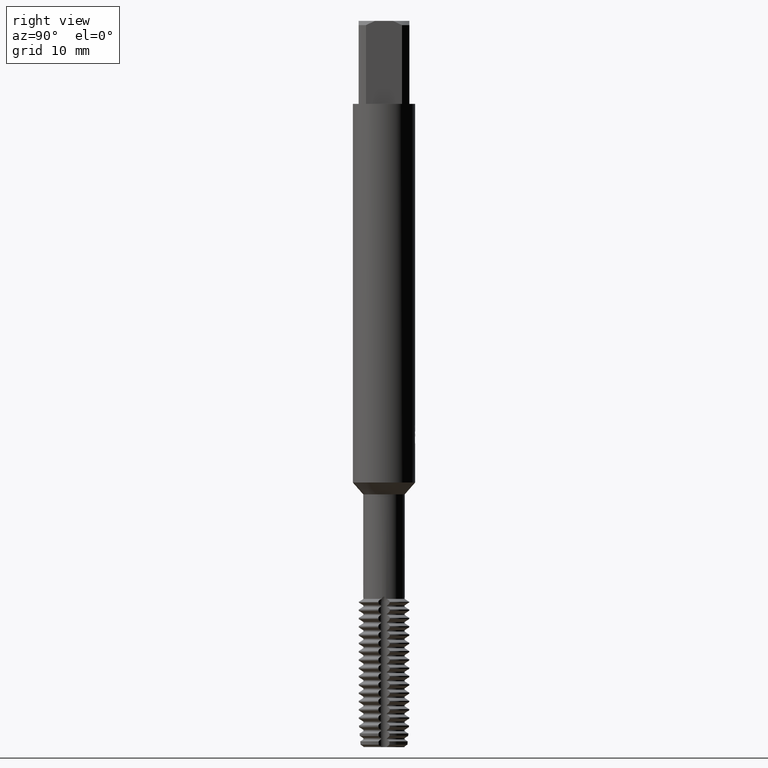
[diagram: clean part render]
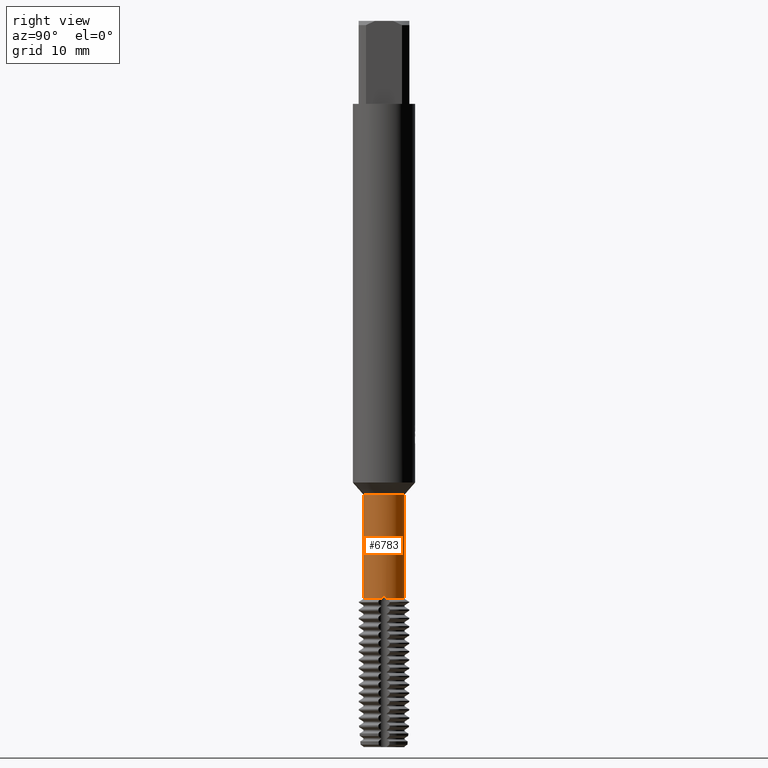
[diagram: same view with one face highlighted and labeled with its STEP entity id]
A machine part, right view. The second image highlights one B-rep face of the part: STEP entity #6783.
In plain terms, the highlighted cylindrical surface (edge-blend (fillet) strip) has radius 2 mm, axis along (-0, -0, 1).
Its self-contained STEP definition (entity closure, byte-faithful):
#2967=EDGE_CURVE('',#6327,#5201,#8851,.T.);
#3571=EDGE_CURVE('',#5201,#4161,#9507,.T.);
#3719=EDGE_CURVE('',#4937,#4901,#9674,.T.);
#3851=EDGE_CURVE('',#6533,#5689,#9818,.T.);
#4161=VERTEX_POINT('',#10156);
#4405=EDGE_CURVE('',#6533,#4161,#10426,.T.);
#4901=VERTEX_POINT('',#10971);
#4937=VERTEX_POINT('',#11008);
#5201=VERTEX_POINT('',#11287);
#5613=EDGE_CURVE('',#6327,#4901,#11738,.T.);
#5689=VERTEX_POINT('',#11818);
#6327=VERTEX_POINT('',#12515);
#6533=VERTEX_POINT('',#12744);
#6783=ADVANCED_FACE('',(#13012),#13013,.T.);
#6823=EDGE_CURVE('',#6991,#7283,#13057,.T.);
#6991=VERTEX_POINT('',#13236);
#7283=VERTEX_POINT('',#13551);
#7989=EDGE_CURVE('',#6991,#5689,#14305,.T.);
#8663=EDGE_CURVE('',#4937,#7283,#15031,.T.);
#8851=B_SPLINE_CURVE_WITH_KNOTS('',3,(#15224,#15225,#15226,#15227,#15228,#15229,#15230,#15231,#15232,#15233,#15234,#15235,#15236,#15237,#15238,#15239,#15240,#15241),.UNSPECIFIED.,.F.,.F.,(4,2,2,2,2,2,2,2,4),(0.0,0.184916828543071,0.313881170598999,0.392657508019681,0.455740030960599,0.527677729166311,0.648953381606083,0.801127423903104,0.947968422808011),.UNSPECIFIED.);
#9507=B_SPLINE_CURVE_WITH_KNOTS('',3,(#16461,#16462,#16463,#16464,#16465,#16466,#16467,#16468,#16469,#16470,#16471,#16472,#16473,#16474,#16475,#16476,#16477,#16478),.UNSPECIFIED.,.F.,.F.,(4,2,2,2,2,2,2,2,4),(0.0,0.184916828543071,0.313881170598999,0.392657508019681,0.455740030960599,0.527677729166311,0.648953381606083,0.801127423903104,0.947968422808011),.UNSPECIFIED.);
#9674=B_SPLINE_CURVE_WITH_KNOTS('',3,(#16757,#16758,#16759,#16760,#16761,#16762,#16763,#16764,#16765,#16766,#16767,#16768,#16769,#16770,#16771,#16772,#16773,#16774),.UNSPECIFIED.,.F.,.F.,(4,2,2,2,2,2,2,2,4),(0.0,0.184916828542244,0.313881170602458,0.39265750802902,0.455740030974451,0.527677729185293,0.64895338163406,0.801127423942244,0.94796842285793),.UNSPECIFIED.);
#9818=B_SPLINE_CURVE_WITH_KNOTS('',3,(#17016,#17017,#17018,#17019,#17020,#17021,#17022,#17023,#17024,#17025,#17026,#17027,#17028,#17029,#17030,#17031,#17032,#17033),.UNSPECIFIED.,.F.,.F.,(4,2,2,2,2,2,2,2,4),(0.0,0.184916828543801,0.313881170598388,0.392657508017033,0.45574003095613,0.527677729159719,0.648953381596259,0.801127423889196,0.947968422790102),.UNSPECIFIED.);
#10156=CARTESIAN_POINT('',(1.98818840626598,0.217041150912674,-55.7113248654052));
#10426=CIRCLE('',#18218,2.0);
#10971=CARTESIAN_POINT('',(0.217041150912737,-1.98818840626599,-55.7113248654052));
#11008=CARTESIAN_POINT('',(-4.75323867020173E-013,-2.0,-55.4913272165206));
#11287=CARTESIAN_POINT('',(2.0,-4.75495151171132E-013,-55.4913272165206));
#11738=CIRCLE('',#20654,2.0);
#11818=CARTESIAN_POINT('',(4.75306954330964E-013,2.0,-55.4913272165206));
#12515=CARTESIAN_POINT('',(1.98818840626599,-0.217041150912705,-55.7113248654052));
#12744=CARTESIAN_POINT('',(0.217041150912698,1.98818840626599,-55.7113248654052));
#13012=FACE_OUTER_BOUND('',#23056,.T.);
#13013=CYLINDRICAL_SURFACE('',#23057,2.0);
#13057=CIRCLE('',#23131,2.0);
#13236=CARTESIAN_POINT('',(0.0,2.0,-45.63971143));
#13551=CARTESIAN_POINT('',(2.44921270764475E-016,-2.0,-45.63971143));
#14305=LINE('',#25473,#25474);
#15031=LINE('',#26864,#26865);
#15224=CARTESIAN_POINT('',(1.98818840626599,-0.217041150912704,-55.7113248654052));
#15225=CARTESIAN_POINT('',(1.99040136188015,-0.196769544919332,-55.6531567977625));
#15226=CARTESIAN_POINT('',(1.9929508516576,-0.170546836302032,-55.6045018817615));
#15227=CARTESIAN_POINT('',(1.99659177912029,-0.118651361228063,-55.5421955936678));
#15228=CARTESIAN_POINT('',(1.99785792265676,-0.0956162957738745,-55.5228740456769));
#15229=CARTESIAN_POINT('',(1.99924476439916,-0.0568886544430334,-55.5021928749242));
#15230=CARTESIAN_POINT('',(1.99964121236422,-0.0412732748931032,-55.4964792105463));
#15231=CARTESIAN_POINT('',(2.0000084034947,-0.011770152683538,-55.4912009991279));
#15232=CARTESIAN_POINT('',(2.00004337429773,0.00147802351660006,-55.4907050412865));
#15233=CARTESIAN_POINT('',(1.9998343994518,0.0298469969715637,-55.4936994585098));
#15234=CARTESIAN_POINT('',(1.999554580238,0.0444601085654174,-55.497704079874));
#15235=CARTESIAN_POINT('',(1.99845829977472,0.0819710553093441,-55.5138213421926));
#15236=CARTESIAN_POINT('',(1.99743195346266,0.102958844637766,-55.5292812837702));
#15237=CARTESIAN_POINT('',(1.99493074752295,0.144148024721046,-55.5699767275644));
#15238=CARTESIAN_POINT('',(1.99338525362248,0.163293444133312,-55.5971693201742));
#15239=CARTESIAN_POINT('',(1.99060688305388,0.194207550773391,-55.6526423722295));
#15240=CARTESIAN_POINT('',(1.98931063957454,0.206761020882981,-55.6818266944591));
#15241=CARTESIAN_POINT('',(1.98818840626599,0.217041150912705,-55.7113248654052));
#16461=CARTESIAN_POINT('',(1.98818840626599,-0.217041150912704,-55.7113248654052));
#16462=CARTESIAN_POINT('',(1.99040136188015,-0.196769544919332,-55.6531567977625));
#16463=CARTESIAN_POINT('',(1.9929508516576,-0.170546836302032,-55.6045018817615));
#16464=CARTESIAN_POINT('',(1.99659177912029,-0.118651361228063,-55.5421955936678));
#16465=CARTESIAN_POINT('',(1.99785792265676,-0.0956162957738745,-55.5228740456769));
#16466=CARTESIAN_POINT('',(1.99924476439916,-0.0568886544430334,-55.5021928749242));
#16467=CARTESIAN_POINT('',(1.99964121236422,-0.0412732748931032,-55.4964792105463));
#16468=CARTESIAN_POINT('',(2.0000084034947,-0.011770152683538,-55.4912009991279));
#16469=CARTESIAN_POINT('',(2.00004337429773,0.00147802351660006,-55.4907050412865));
#16470=CARTESIAN_POINT('',(1.9998343994518,0.0298469969715637,-55.4936994585098));
#16471=CARTESIAN_POINT('',(1.999554580238,0.0444601085654174,-55.497704079874));
#16472=CARTESIAN_POINT('',(1.99845829977472,0.0819710553093441,-55.5138213421926));
#16473=CARTESIAN_POINT('',(1.99743195346266,0.102958844637766,-55.5292812837702));
#16474=CARTESIAN_POINT('',(1.99493074752295,0.144148024721046,-55.5699767275644));
#16475=CARTESIAN_POINT('',(1.99338525362248,0.163293444133312,-55.5971693201742));
#16476=CARTESIAN_POINT('',(1.99060688305388,0.194207550773391,-55.6526423722295));
#16477=CARTESIAN_POINT('',(1.98931063957454,0.206761020882981,-55.6818266944591));
#16478=CARTESIAN_POINT('',(1.98818840626599,0.217041150912705,-55.7113248654052));
#16757=CARTESIAN_POINT('',(-0.217041150912712,-1.98818840626599,-55.7113248654052));
#16758=CARTESIAN_POINT('',(-0.196769544919432,-1.99040136188014,-55.6531567977628));
#16759=CARTESIAN_POINT('',(-0.17054683630218,-1.99295085165759,-55.6045018817617));
#16760=CARTESIAN_POINT('',(-0.118651361227165,-1.99659177912035,-55.5421955936667));
#16761=CARTESIAN_POINT('',(-0.0956162957729019,-1.99785792265679,-55.5228740456764));
#16762=CARTESIAN_POINT('',(-0.0568886544430276,-1.99924476439916,-55.5021928749242));
#16763=CARTESIAN_POINT('',(-0.0412732748931019,-1.99964121236422,-55.4964792105463));
#16764=CARTESIAN_POINT('',(-0.0117701526835849,-2.0000084034947,-55.4912009991279));
#16765=CARTESIAN_POINT('',(0.0014780235165756,-2.00004337429773,-55.4907050412865));
#16766=CARTESIAN_POINT('',(0.029846996971584,-1.9998343994518,-55.4936994585097));
#16767=CARTESIAN_POINT('',(0.044460108565461,-1.999554580238,-55.497704079874));
#16768=CARTESIAN_POINT('',(0.0819710553093343,-1.99845829977472,-55.5138213421926));
#16769=CARTESIAN_POINT('',(0.102958844637748,-1.99743195346266,-55.5292812837701));
#16770=CARTESIAN_POINT('',(0.144148024721048,-1.99493074752295,-55.5699767275644));
#16771=CARTESIAN_POINT('',(0.163293444133316,-1.99338525362248,-55.5971693201742));
#16772=CARTESIAN_POINT('',(0.194207550773386,-1.99060688305388,-55.6526423722295));
#16773=CARTESIAN_POINT('',(0.206761020882975,-1.98931063957454,-55.6818266944591));
#16774=CARTESIAN_POINT('',(0.217041150912714,-1.98818840626599,-55.7113248654052));
#17016=CARTESIAN_POINT('',(0.217041150912698,1.98818840626599,-55.7113248654052));
#17017=CARTESIAN_POINT('',(0.196769544919246,1.99040136188016,-55.6531567977623));
#17018=CARTESIAN_POINT('',(0.170546836301902,1.99295085165761,-55.6045018817614));
#17019=CARTESIAN_POINT('',(0.118651361228449,1.99659177912026,-55.5421955936682));
#17020=CARTESIAN_POINT('',(0.0956162957742932,1.99785792265674,-55.5228740456771));
#17021=CARTESIAN_POINT('',(0.0568886544429987,1.99924476439916,-55.5021928749242));
#17022=CARTESIAN_POINT('',(0.0412732748930852,1.99964121236422,-55.4964792105463));
#17023=CARTESIAN_POINT('',(0.0117701526835883,2.0000084034947,-55.4912009991279));
#17024=CARTESIAN_POINT('',(-0.00147802351657544,2.00004337429773,-55.4907050412865));
#17025=CARTESIAN_POINT('',(-0.0298469969715843,1.9998343994518,-55.4936994585098));
#17026=CARTESIAN_POINT('',(-0.0444601085654584,1.999554580238,-55.497704079874));
#17027=CARTESIAN_POINT('',(-0.0819710553093431,1.99845829977472,-55.5138213421926));
#17028=CARTESIAN_POINT('',(-0.102958844637764,1.99743195346266,-55.5292812837702));
#17029=CARTESIAN_POINT('',(-0.144148024721045,1.99493074752295,-55.5699767275644));
#17030=CARTESIAN_POINT('',(-0.163293444133309,1.99338525362248,-55.5971693201742));
#17031=CARTESIAN_POINT('',(-0.194207550773385,1.99060688305388,-55.6526423722295));
#17032=CARTESIAN_POINT('',(-0.206761020882972,1.98931063957454,-55.6818266944591));
#17033=CARTESIAN_POINT('',(-0.217041150912698,1.98818840626599,-55.7113248654052));
#18218=AXIS2_PLACEMENT_3D('',#29036,#29037,#29038);
#20654=AXIS2_PLACEMENT_3D('',#30485,#30486,#30487);
#23056=EDGE_LOOP('',(#31894,#31895,#31896,#31897,#31898,#31899,#31900,#31901,#31902));
#23057=AXIS2_PLACEMENT_3D('',#31903,#31904,#31905);
#23131=AXIS2_PLACEMENT_3D('',#31955,#31956,#31957);
#25473=CARTESIAN_POINT('',(-2.44921270764475E-016,2.0,-50.6755181477026));
#25474=VECTOR('',#33220,1.0);
#26864=CARTESIAN_POINT('',(2.44921270764475E-016,-2.0,-50.6755181477026));
#26865=VECTOR('',#33876,1.0);
#29036=CARTESIAN_POINT('',(0.0,0.0,-55.7113248654052));
#29037=DIRECTION('',(0.0,0.0,-1.0));
#29038=DIRECTION('',(0.0,1.0,0.0));
#30485=CARTESIAN_POINT('',(0.0,0.0,-55.7113248654052));
#30486=DIRECTION('',(0.0,0.0,-1.0));
#30487=DIRECTION('',(0.0,1.0,0.0));
#31894=ORIENTED_EDGE('',*,*,#7989,.F.);
#31895=ORIENTED_EDGE('',*,*,#6823,.T.);
#31896=ORIENTED_EDGE('',*,*,#8663,.F.);
#31897=ORIENTED_EDGE('',*,*,#3719,.T.);
#31898=ORIENTED_EDGE('',*,*,#5613,.F.);
#31899=ORIENTED_EDGE('',*,*,#2967,.T.);
#31900=ORIENTED_EDGE('',*,*,#3571,.T.);
#31901=ORIENTED_EDGE('',*,*,#4405,.F.);
#31902=ORIENTED_EDGE('',*,*,#3851,.T.);
#31903=CARTESIAN_POINT('',(0.0,0.0,-50.6755181477026));
#31904=DIRECTION('',(-0.0,-0.0,1.0));
#31905=DIRECTION('',(0.0,1.0,0.0));
#31955=CARTESIAN_POINT('',(0.0,0.0,-45.63971143));
#31956=DIRECTION('',(0.0,0.0,-1.0));
#31957=DIRECTION('',(0.0,1.0,0.0));
#33220=DIRECTION('',(0.0,0.0,-1.0));
#33876=DIRECTION('',(-0.0,-0.0,1.0));